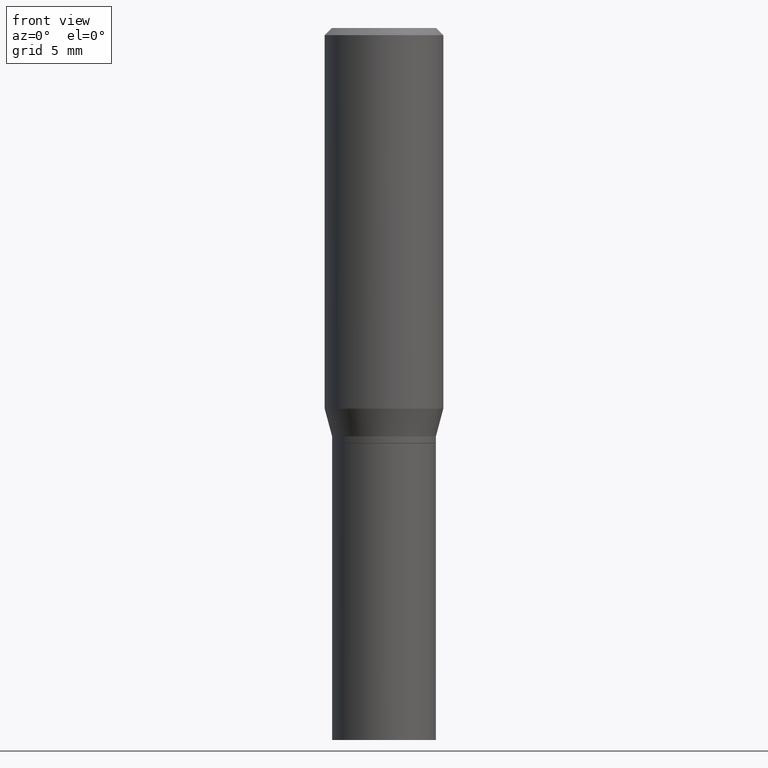
[diagram: clean part render]
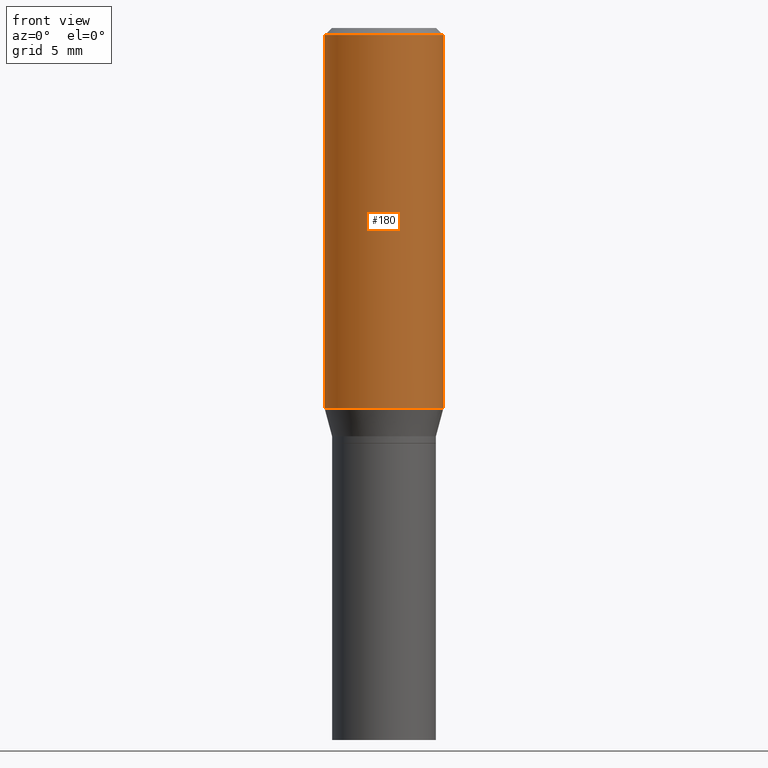
[diagram: same view with one face highlighted and labeled with its STEP entity id]
A machine part, front view. The second image highlights one B-rep face of the part: STEP entity #180.
In plain terms, the highlighted cylindrical surface (partial cylindrical patch) has radius 3.175 mm, axis along (-0, 0, 1).
Its self-contained STEP definition (entity closure, byte-faithful):
#8 = ORIENTED_EDGE ( 'NONE', *, *, #59, .F. ) ;
#15 = EDGE_CURVE ( 'NONE', #123, #412, #312, .T. ) ;
#26 = CARTESIAN_POINT ( 'NONE',  ( 1.960727997524297343E-29, -2.799399933701342964E-15, -0.8017800074019257872 ) ) ;
#59 = EDGE_CURVE ( 'NONE', #412, #287, #60, .T. ) ;
#60 = CIRCLE ( 'NONE', #275, 0.1250000000000000000 ) ;
#84 = DIRECTION ( 'NONE',  ( -2.445468806185136597E-29, 3.491481338843145583E-15, 1.000000000000000000 ) ) ;
#123 = VERTEX_POINT ( 'NONE', #382 ) ;
#127 = CARTESIAN_POINT ( 'NONE',  ( 0.000000000000000000, 0.000000000000000000, 0.000000000000000000 ) ) ;
#136 = VECTOR ( 'NONE', #358, 39.37007874015748143 ) ;
#147 = ORIENTED_EDGE ( 'NONE', *, *, #465, .T. ) ;
#148 = AXIS2_PLACEMENT_3D ( 'NONE', #26, #414, #389 ) ;
#154 = DIRECTION ( 'NONE',  ( 1.000000000000000000, -6.982962677686266711E-15, 0.000000000000000000 ) ) ;
#155 = DIRECTION ( 'NONE',  ( -2.445468806185136597E-29, 3.491481338843145583E-15, 1.000000000000000000 ) ) ;
#158 = EDGE_LOOP ( 'NONE', ( #302, #402, #147, #8 ) ) ;
#180 = ADVANCED_FACE ( 'NONE', ( #446 ), #407, .T. ) ;
#183 = DIRECTION ( 'NONE',  ( -2.445468806185136877E-29, 3.491481338843145188E-15, 1.000000000000000000 ) ) ;
#188 = CARTESIAN_POINT ( 'NONE',  ( 3.668203209277705088E-31, -5.237222008264718399E-17, -0.01499999999999999944 ) ) ;
#221 = LINE ( 'NONE', #364, #404 ) ;
#234 = DIRECTION ( 'NONE',  ( 1.000000000000000000, -6.982962677686266711E-15, 4.876176775795935793E-29 ) ) ;
#275 = AXIS2_PLACEMENT_3D ( 'NONE', #188, #84, #154 ) ;
#287 = VERTEX_POINT ( 'NONE', #385 ) ;
#302 = ORIENTED_EDGE ( 'NONE', *, *, #15, .F. ) ;
#312 = LINE ( 'NONE', #421, #136 ) ;
#315 = VERTEX_POINT ( 'NONE', #395 ) ;
#319 = CARTESIAN_POINT ( 'NONE',  ( -0.1250000000000000000, -5.377076571918697891E-16, -0.01499999999999999944 ) ) ;
#326 = AXIS2_PLACEMENT_3D ( 'NONE', #127, #155, #234 ) ;
#340 = CIRCLE ( 'NONE', #148, 0.1250000000000000000 ) ;
#358 = DIRECTION ( 'NONE',  ( -2.445468806185136877E-29, 3.491481338843145188E-15, 1.000000000000000000 ) ) ;
#364 = CARTESIAN_POINT ( 'NONE',  ( 0.1250000000000000000, -8.728703347107833388E-16, 6.095220969744919741E-30 ) ) ;
#382 = CARTESIAN_POINT ( 'NONE',  ( -0.1250000000000000000, -1.911221514001217731E-15, -0.8017800074019257872 ) ) ;
#385 = CARTESIAN_POINT ( 'NONE',  ( 0.1250000000000000000, -9.252425547934304180E-16, -0.01499999999999999944 ) ) ;
#389 = DIRECTION ( 'NONE',  ( 1.000000000000000000, -6.982962677686266711E-15, 0.000000000000000000 ) ) ;
#395 = CARTESIAN_POINT ( 'NONE',  ( 0.1250000000000000000, -3.672270268412127091E-15, -0.8017800074019257872 ) ) ;
#402 = ORIENTED_EDGE ( 'NONE', *, *, #457, .T. ) ;
#404 = VECTOR ( 'NONE', #183, 39.37007874015748143 ) ;
#407 = CYLINDRICAL_SURFACE ( 'NONE', #326, 0.1250000000000000000 ) ;
#412 = VERTEX_POINT ( 'NONE', #319 ) ;
#414 = DIRECTION ( 'NONE',  ( -2.445468806185136597E-29, 3.491481338843145583E-15, 1.000000000000000000 ) ) ;
#421 = CARTESIAN_POINT ( 'NONE',  ( -0.1250000000000000000, 8.881784197001252323E-16, -6.148668862818632227E-30 ) ) ;
#446 = FACE_OUTER_BOUND ( 'NONE', #158, .T. ) ;
#457 = EDGE_CURVE ( 'NONE', #123, #315, #340, .T. ) ;
#465 = EDGE_CURVE ( 'NONE', #315, #287, #221, .T. ) ;